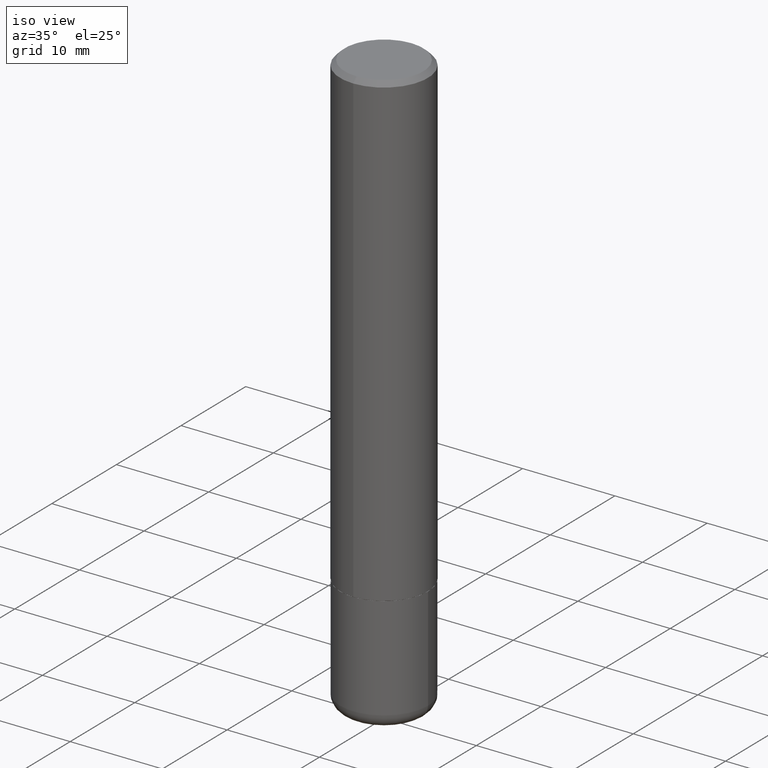
[diagram: clean part render]
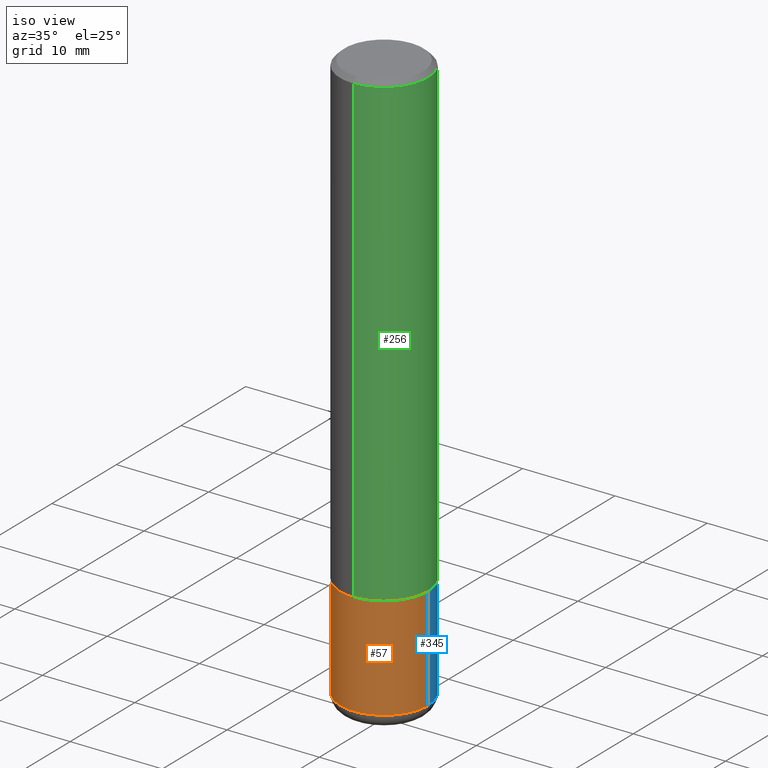
[diagram: same view with three faces highlighted in distinct colors, each labeled with its STEP entity id]
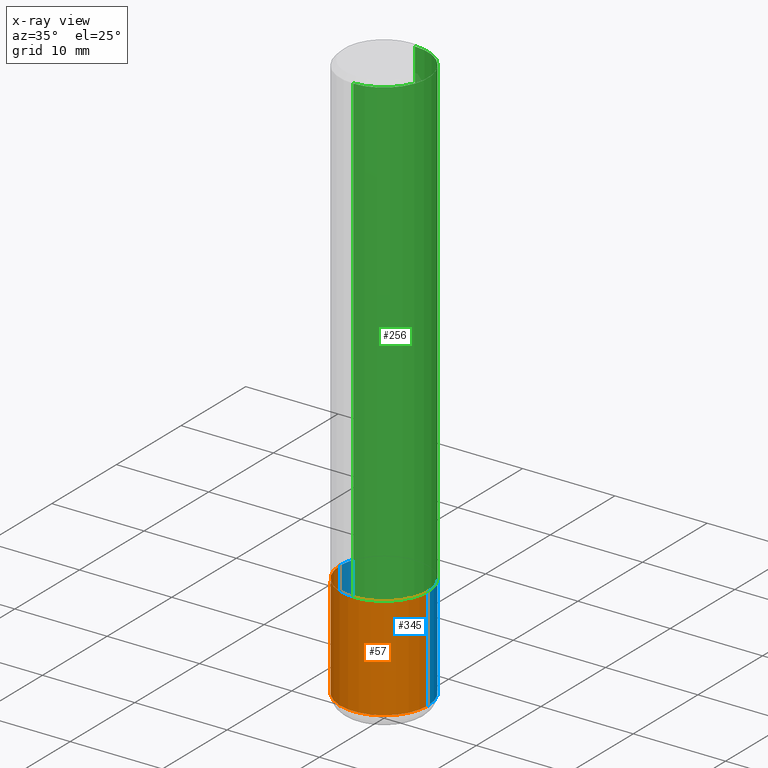
[diagram: x-ray of the same camera — body ghosted, the three highlighted faces saturated]
A machine part, iso view with three faces highlighted in distinct colors.
The next image is the same camera in x-ray (body ghosted, the three faces saturated) — at least one of them is partly hidden behind the body in this view.
Their STEP definitions:

[orange] entity #57 — the highlighted cylindrical surface (partial cylindrical patch) has radius 4.7625 mm, axis along (-0, 0, 1).
#1 = CIRCLE ( 'NONE', #182, 0.1875000000000000278 ) ;
#9 = VECTOR ( 'NONE', #26, 39.37007874015748143 ) ;
#14 = ORIENTED_EDGE ( 'NONE', *, *, #365, .T. ) ;
#16 = CARTESIAN_POINT ( 'NONE',  ( 0.1875000000000000555, -1.309305502066175205E-15, 9.142831454617382414E-30 ) ) ;
#26 = DIRECTION ( 'NONE',  ( -2.445468806185136877E-29, 3.491481338843145188E-15, 1.000000000000000000 ) ) ;
#29 = VERTEX_POINT ( 'NONE', #230 ) ;
#31 = VERTEX_POINT ( 'NONE', #169 ) ;
#45 = DIRECTION ( 'NONE',  ( -2.445468806185136597E-29, 3.491481338843145583E-15, 1.000000000000000000 ) ) ;
#47 = LINE ( 'NONE', #16, #9 ) ;
#49 = EDGE_CURVE ( 'NONE', #31, #190, #243, .T. ) ;
#56 = AXIS2_PLACEMENT_3D ( 'NONE', #374, #369, #197 ) ;
#57 = ADVANCED_FACE ( 'NONE', ( #137 ), #266, .T. ) ;
#65 = VERTEX_POINT ( 'NONE', #77 ) ;
#68 = CARTESIAN_POINT ( 'NONE',  ( 4.890937612370273194E-29, -6.982962677686291165E-15, -2.000000000000000000 ) ) ;
#69 = EDGE_CURVE ( 'NONE', #31, #29, #206, .T. ) ;
#77 = CARTESIAN_POINT ( 'NONE',  ( 0.1875000000000000278, -8.292268179752466962E-15, -2.000000000000000000 ) ) ;
#137 = FACE_OUTER_BOUND ( 'NONE', #339, .T. ) ;
#154 = AXIS2_PLACEMENT_3D ( 'NONE', #410, #412, #366 ) ;
#166 = DIRECTION ( 'NONE',  ( 1.000000000000000000, -6.982962677686266711E-15, 0.000000000000000000 ) ) ;
#167 = ORIENTED_EDGE ( 'NONE', *, *, #49, .T. ) ;
#169 = CARTESIAN_POINT ( 'NONE',  ( -0.1875000000000001388, -7.186946837227087200E-15, -2.440000000000000391 ) ) ;
#173 = CARTESIAN_POINT ( 'NONE',  ( -0.1875000000000000555, 1.332267629550188243E-15, -9.223003294227950793E-30 ) ) ;
#182 = AXIS2_PLACEMENT_3D ( 'NONE', #68, #45, #166 ) ;
#190 = VERTEX_POINT ( 'NONE', #198 ) ;
#197 = DIRECTION ( 'NONE',  ( 1.000000000000000000, -6.982962677686260400E-15, 0.000000000000000000 ) ) ;
#198 = CARTESIAN_POINT ( 'NONE',  ( 0.1875000000000001388, -9.828519968843450056E-15, -2.440000000000000391 ) ) ;
#206 = LINE ( 'NONE', #173, #316 ) ;
#219 = ORIENTED_EDGE ( 'NONE', *, *, #69, .F. ) ;
#230 = CARTESIAN_POINT ( 'NONE',  ( -0.1875000000000000278, -6.418820942681594864E-15, -2.000000000000000000 ) ) ;
#243 = CIRCLE ( 'NONE', #56, 0.1875000000000000555 ) ;
#266 = CYLINDRICAL_SURFACE ( 'NONE', #154, 0.1875000000000000555 ) ;
#278 = ORIENTED_EDGE ( 'NONE', *, *, #340, .F. ) ;
#300 = DIRECTION ( 'NONE',  ( -2.445468806185136877E-29, 3.491481338843145188E-15, 1.000000000000000000 ) ) ;
#316 = VECTOR ( 'NONE', #300, 39.37007874015748143 ) ;
#339 = EDGE_LOOP ( 'NONE', ( #219, #167, #14, #278 ) ) ;
#340 = EDGE_CURVE ( 'NONE', #29, #65, #1, .T. ) ;
#365 = EDGE_CURVE ( 'NONE', #190, #65, #47, .T. ) ;
#366 = DIRECTION ( 'NONE',  ( 1.000000000000000000, -6.982962677686265922E-15, 4.876176775795935793E-29 ) ) ;
#369 = DIRECTION ( 'NONE',  ( -2.445468806185136597E-29, 3.491481338843145583E-15, 1.000000000000000000 ) ) ;
#374 = CARTESIAN_POINT ( 'NONE',  ( 5.966943887091733341E-29, -8.519214466777275048E-15, -2.440000000000000391 ) ) ;
#410 = CARTESIAN_POINT ( 'NONE',  ( 0.000000000000000000, 0.000000000000000000, 0.000000000000000000 ) ) ;
#412 = DIRECTION ( 'NONE',  ( -2.445468806185136597E-29, 3.491481338843145583E-15, 1.000000000000000000 ) ) ;

[blue] entity #345 — the highlighted cylindrical surface (partial cylindrical patch) has radius 4.7625 mm, axis along (-0, 0, 1).
#2 = ORIENTED_EDGE ( 'NONE', *, *, #365, .F. ) ;
#7 = FACE_OUTER_BOUND ( 'NONE', #58, .T. ) ;
#9 = VECTOR ( 'NONE', #26, 39.37007874015748143 ) ;
#16 = CARTESIAN_POINT ( 'NONE',  ( 0.1875000000000000555, -1.309305502066175205E-15, 9.142831454617382414E-30 ) ) ;
#18 = DIRECTION ( 'NONE',  ( 1.000000000000000000, -6.982962677686260400E-15, 0.000000000000000000 ) ) ;
#26 = DIRECTION ( 'NONE',  ( -2.445468806185136877E-29, 3.491481338843145188E-15, 1.000000000000000000 ) ) ;
#29 = VERTEX_POINT ( 'NONE', #230 ) ;
#31 = VERTEX_POINT ( 'NONE', #169 ) ;
#39 = AXIS2_PLACEMENT_3D ( 'NONE', #227, #128, #74 ) ;
#47 = LINE ( 'NONE', #16, #9 ) ;
#52 = DIRECTION ( 'NONE',  ( -2.445468806185136597E-29, 3.491481338843145583E-15, 1.000000000000000000 ) ) ;
#58 = EDGE_LOOP ( 'NONE', ( #282, #271, #262, #2 ) ) ;
#65 = VERTEX_POINT ( 'NONE', #77 ) ;
#69 = EDGE_CURVE ( 'NONE', #31, #29, #206, .T. ) ;
#74 = DIRECTION ( 'NONE',  ( 1.000000000000000000, -6.982962677686266711E-15, 0.000000000000000000 ) ) ;
#77 = CARTESIAN_POINT ( 'NONE',  ( 0.1875000000000000278, -8.292268179752466962E-15, -2.000000000000000000 ) ) ;
#123 = CARTESIAN_POINT ( 'NONE',  ( 0.000000000000000000, 0.000000000000000000, 0.000000000000000000 ) ) ;
#128 = DIRECTION ( 'NONE',  ( -2.445468806185136597E-29, 3.491481338843145583E-15, 1.000000000000000000 ) ) ;
#169 = CARTESIAN_POINT ( 'NONE',  ( -0.1875000000000001388, -7.186946837227087200E-15, -2.440000000000000391 ) ) ;
#173 = CARTESIAN_POINT ( 'NONE',  ( -0.1875000000000000555, 1.332267629550188243E-15, -9.223003294227950793E-30 ) ) ;
#190 = VERTEX_POINT ( 'NONE', #198 ) ;
#198 = CARTESIAN_POINT ( 'NONE',  ( 0.1875000000000001388, -9.828519968843450056E-15, -2.440000000000000391 ) ) ;
#202 = EDGE_CURVE ( 'NONE', #190, #31, #328, .T. ) ;
#206 = LINE ( 'NONE', #173, #316 ) ;
#227 = CARTESIAN_POINT ( 'NONE',  ( 4.890937612370273194E-29, -6.982962677686291165E-15, -2.000000000000000000 ) ) ;
#230 = CARTESIAN_POINT ( 'NONE',  ( -0.1875000000000000278, -6.418820942681594864E-15, -2.000000000000000000 ) ) ;
#231 = CIRCLE ( 'NONE', #39, 0.1875000000000000278 ) ;
#250 = AXIS2_PLACEMENT_3D ( 'NONE', #123, #52, #276 ) ;
#262 = ORIENTED_EDGE ( 'NONE', *, *, #335, .F. ) ;
#271 = ORIENTED_EDGE ( 'NONE', *, *, #69, .T. ) ;
#276 = DIRECTION ( 'NONE',  ( 1.000000000000000000, -6.982962677686265922E-15, 4.876176775795935793E-29 ) ) ;
#282 = ORIENTED_EDGE ( 'NONE', *, *, #202, .T. ) ;
#292 = CYLINDRICAL_SURFACE ( 'NONE', #250, 0.1875000000000000555 ) ;
#300 = DIRECTION ( 'NONE',  ( -2.445468806185136877E-29, 3.491481338843145188E-15, 1.000000000000000000 ) ) ;
#316 = VECTOR ( 'NONE', #300, 39.37007874015748143 ) ;
#328 = CIRCLE ( 'NONE', #405, 0.1875000000000000555 ) ;
#335 = EDGE_CURVE ( 'NONE', #65, #29, #231, .T. ) ;
#345 = ADVANCED_FACE ( 'NONE', ( #7 ), #292, .T. ) ;
#365 = EDGE_CURVE ( 'NONE', #190, #65, #47, .T. ) ;
#388 = CARTESIAN_POINT ( 'NONE',  ( 5.966943887091733341E-29, -8.519214466777275048E-15, -2.440000000000000391 ) ) ;
#405 = AXIS2_PLACEMENT_3D ( 'NONE', #388, #406, #18 ) ;
#406 = DIRECTION ( 'NONE',  ( -2.445468806185136597E-29, 3.491481338843145583E-15, 1.000000000000000000 ) ) ;

[green] entity #256 — the highlighted cylindrical surface (partial cylindrical patch) has radius 4.7625 mm, axis along (-0, 0, 1).
#34 = DIRECTION ( 'NONE',  ( -2.445162114595160294E-29, 3.491920538655792902E-15, 1.000000000000000000 ) ) ;
#43 = VERTEX_POINT ( 'NONE', #175 ) ;
#59 = CIRCLE ( 'NONE', #222, 0.1875000000000000555 ) ;
#92 = AXIS2_PLACEMENT_3D ( 'NONE', #224, #286, #403 ) ;
#94 = FACE_OUTER_BOUND ( 'NONE', #387, .T. ) ;
#99 = EDGE_CURVE ( 'NONE', #43, #144, #245, .T. ) ;
#130 = VERTEX_POINT ( 'NONE', #417 ) ;
#136 = CIRCLE ( 'NONE', #208, 0.1875000000000002776 ) ;
#144 = VERTEX_POINT ( 'NONE', #210 ) ;
#175 = CARTESIAN_POINT ( 'NONE',  ( -1.309305502066128268E-15, -0.1875000000000072442, -1.998999999999999444 ) ) ;
#193 = DIRECTION ( 'NONE',  ( -2.445162114595160294E-29, 3.491920538655792902E-15, 1.000000000000000000 ) ) ;
#203 = LINE ( 'NONE', #254, #384 ) ;
#204 = ORIENTED_EDGE ( 'NONE', *, *, #99, .F. ) ;
#208 = AXIS2_PLACEMENT_3D ( 'NONE', #288, #357, #360 ) ;
#209 = CARTESIAN_POINT ( 'NONE',  ( 4.890324229190331589E-31, -6.983841077311600052E-17, -0.02000000000000004205 ) ) ;
#210 = CARTESIAN_POINT ( 'NONE',  ( -1.286343374582161774E-15, -0.1875000000000001110, -0.01999999999999938979 ) ) ;
#221 = VERTEX_POINT ( 'NONE', #294 ) ;
#222 = AXIS2_PLACEMENT_3D ( 'NONE', #209, #418, #386 ) ;
#224 = CARTESIAN_POINT ( 'NONE',  ( 0.000000000000000000, 0.000000000000000000, 0.000000000000000000 ) ) ;
#245 = LINE ( 'NONE', #378, #257 ) ;
#247 = EDGE_CURVE ( 'NONE', #221, #130, #203, .T. ) ;
#254 = CARTESIAN_POINT ( 'NONE',  ( 1.332267629550188835E-15, 0.1875000000000001943, -6.547351009979617607E-16 ) ) ;
#256 = ADVANCED_FACE ( 'NONE', ( #94 ), #320, .T. ) ;
#257 = VECTOR ( 'NONE', #34, 39.37007874015748143 ) ;
#260 = ORIENTED_EDGE ( 'NONE', *, *, #308, .T. ) ;
#286 = DIRECTION ( 'NONE',  ( -2.445162114595160575E-29, 3.491920538655792507E-15, 1.000000000000000000 ) ) ;
#288 = CARTESIAN_POINT ( 'NONE',  ( 4.887879067075725967E-29, -6.980349156772927879E-15, -1.998999999999999888 ) ) ;
#289 = ORIENTED_EDGE ( 'NONE', *, *, #247, .T. ) ;
#294 = CARTESIAN_POINT ( 'NONE',  ( 1.332267629550213684E-15, 0.1874999999999933109, -1.999000000000000554 ) ) ;
#308 = EDGE_CURVE ( 'NONE', #43, #221, #136, .T. ) ;
#320 = CYLINDRICAL_SURFACE ( 'NONE', #92, 0.1875000000000001943 ) ;
#355 = ORIENTED_EDGE ( 'NONE', *, *, #408, .F. ) ;
#357 = DIRECTION ( 'NONE',  ( -2.445162114595160575E-29, 3.491920538655792507E-15, 1.000000000000000000 ) ) ;
#360 = DIRECTION ( 'NONE',  ( -6.982962677686266711E-15, -1.000000000000000000, 2.913971193241876428E-15 ) ) ;
#378 = CARTESIAN_POINT ( 'NONE',  ( -1.309305502066176192E-15, -0.1875000000000001943, 6.547351009979617607E-16 ) ) ;
#384 = VECTOR ( 'NONE', #193, 39.37007874015748143 ) ;
#386 = DIRECTION ( 'NONE',  ( -6.982962677686265922E-15, -1.000000000000000000, 3.483106191921934371E-15 ) ) ;
#387 = EDGE_LOOP ( 'NONE', ( #260, #289, #355, #204 ) ) ;
#403 = DIRECTION ( 'NONE',  ( -6.982962677686265922E-15, -1.000000000000000000, 3.491920538655792507E-15 ) ) ;
#408 = EDGE_CURVE ( 'NONE', #144, #130, #59, .T. ) ;
#417 = CARTESIAN_POINT ( 'NONE',  ( 1.309305502066175797E-15, 0.1874999999999999722, -0.02000000000000069431 ) ) ;
#418 = DIRECTION ( 'NONE',  ( -2.445162114595160575E-29, 3.491920538655792507E-15, 1.000000000000000000 ) ) ;